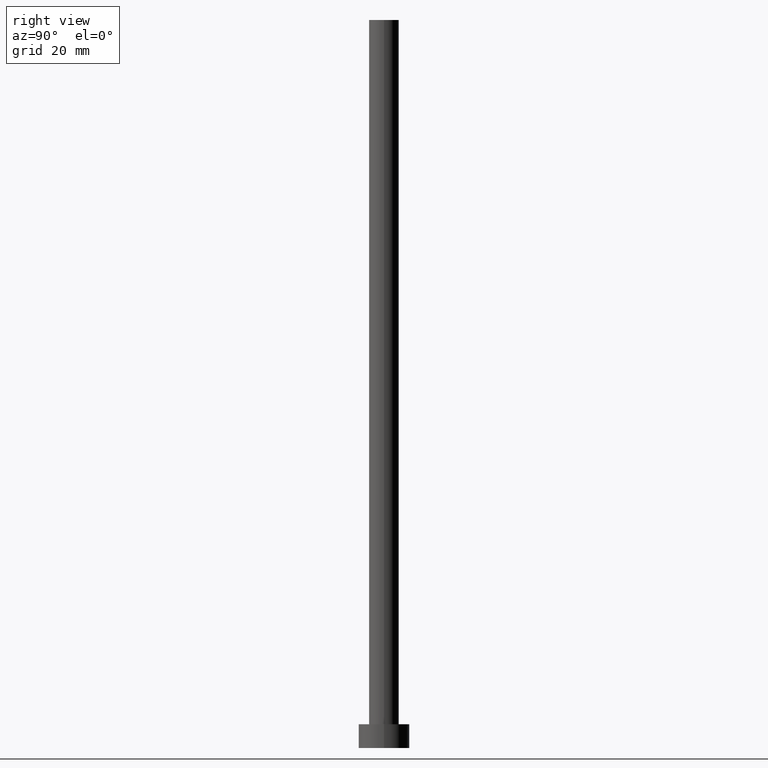
[diagram: clean part render]
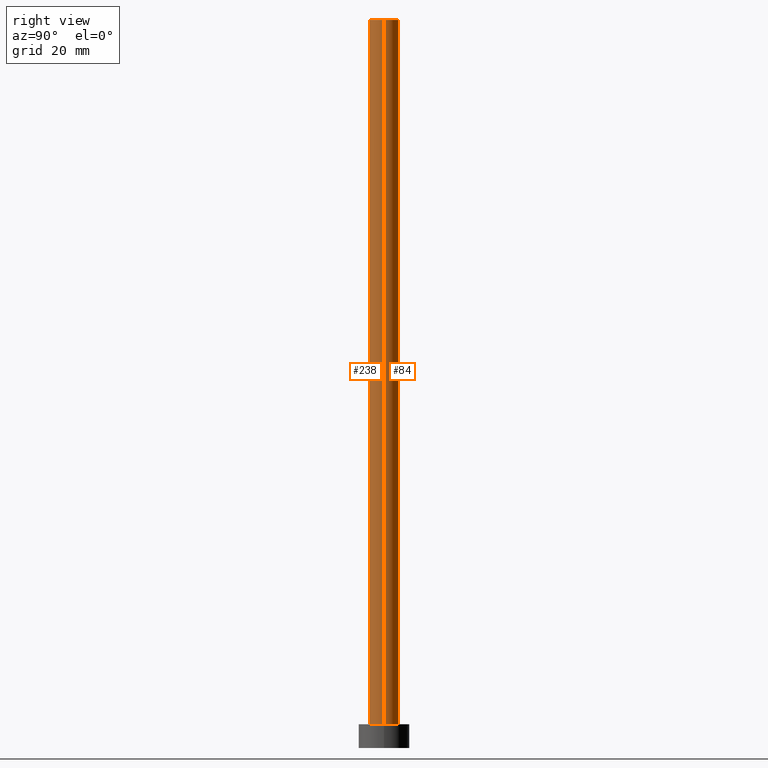
[diagram: same view with one multi-face feature highlighted, each face labeled with its STEP entity id]
A machine part, right view. The highlighted faces form ONE feature: a constant-radius fillet chain: 2 tangent blend faces with common blend radius 4.1 mm. The faces share edges in the B-rep.
Their STEP definitions:
[1] entity #238 (Cylinder):
#13 = DIRECTION ( 'NONE',  ( 0.000000000000000000, 0.000000000000000000, 1.000000000000000000 ) ) ;
#25 = VERTEX_POINT ( 'NONE', #225 ) ;
#26 = ORIENTED_EDGE ( 'NONE', *, *, #144, .F. ) ;
#27 = AXIS2_PLACEMENT_3D ( 'NONE', #235, #13, #92 ) ;
#29 = CARTESIAN_POINT ( 'NONE',  ( 0.000000000000000000, 0.000000000000000000, 6.500000000000000000 ) ) ;
#35 = CYLINDRICAL_SURFACE ( 'NONE', #237, 4.099999999999999645 ) ;
#36 = VECTOR ( 'NONE', #131, 1000.000000000000000 ) ;
#39 = EDGE_CURVE ( 'NONE', #247, #198, #202, .T. ) ;
#47 = ORIENTED_EDGE ( 'NONE', *, *, #77, .T. ) ;
#58 = CARTESIAN_POINT ( 'NONE',  ( -4.099999999999999645, 0.000000000000000000, 6.500000000000000000 ) ) ;
#73 = DIRECTION ( 'NONE',  ( 0.000000000000000000, 0.000000000000000000, 1.000000000000000000 ) ) ;
#77 = EDGE_CURVE ( 'NONE', #168, #198, #231, .T. ) ;
#79 = CARTESIAN_POINT ( 'NONE',  ( 4.099999999999999645, 5.021051876504147385E-16, 200.0000000000000000 ) ) ;
#82 = CIRCLE ( 'NONE', #27, 4.099999999999999645 ) ;
#92 = DIRECTION ( 'NONE',  ( 1.000000000000000000, 0.000000000000000000, 0.000000000000000000 ) ) ;
#105 = ORIENTED_EDGE ( 'NONE', *, *, #140, .T. ) ;
#107 = EDGE_LOOP ( 'NONE', ( #227, #26, #105, #47 ) ) ;
#112 = VECTOR ( 'NONE', #229, 1000.000000000000000 ) ;
#113 = DIRECTION ( 'NONE',  ( 1.000000000000000000, 0.000000000000000000, 0.000000000000000000 ) ) ;
#119 = DIRECTION ( 'NONE',  ( -0.000000000000000000, -0.000000000000000000, -1.000000000000000000 ) ) ;
#128 = CARTESIAN_POINT ( 'NONE',  ( 4.099999999999999645, 5.021051876504147385E-16, 200.0000000000000000 ) ) ;
#131 = DIRECTION ( 'NONE',  ( -0.000000000000000000, -0.000000000000000000, -1.000000000000000000 ) ) ;
#137 = DIRECTION ( 'NONE',  ( -1.000000000000000000, 0.000000000000000000, 0.000000000000000000 ) ) ;
#140 = EDGE_CURVE ( 'NONE', #25, #168, #252, .T. ) ;
#144 = EDGE_CURVE ( 'NONE', #25, #247, #82, .T. ) ;
#150 = CARTESIAN_POINT ( 'NONE',  ( 0.000000000000000000, 0.000000000000000000, 200.0000000000000000 ) ) ;
#152 = AXIS2_PLACEMENT_3D ( 'NONE', #29, #73, #113 ) ;
#168 = VERTEX_POINT ( 'NONE', #58 ) ;
#174 = CARTESIAN_POINT ( 'NONE',  ( 4.099999999999999645, 5.021051876504147385E-16, 6.500000000000000000 ) ) ;
#190 = CARTESIAN_POINT ( 'NONE',  ( -4.099999999999999645, 0.000000000000000000, 200.0000000000000000 ) ) ;
#198 = VERTEX_POINT ( 'NONE', #174 ) ;
#202 = LINE ( 'NONE', #128, #36 ) ;
#209 = FACE_OUTER_BOUND ( 'NONE', #107, .T. ) ;
#225 = CARTESIAN_POINT ( 'NONE',  ( -4.099999999999999645, 0.000000000000000000, 200.0000000000000000 ) ) ;
#227 = ORIENTED_EDGE ( 'NONE', *, *, #39, .F. ) ;
#229 = DIRECTION ( 'NONE',  ( -0.000000000000000000, -0.000000000000000000, -1.000000000000000000 ) ) ;
#231 = CIRCLE ( 'NONE', #152, 4.099999999999999645 ) ;
#235 = CARTESIAN_POINT ( 'NONE',  ( 0.000000000000000000, 0.000000000000000000, 200.0000000000000000 ) ) ;
#237 = AXIS2_PLACEMENT_3D ( 'NONE', #150, #119, #137 ) ;
#238 = ADVANCED_FACE ( 'NONE', ( #209 ), #35, .T. ) ;
#247 = VERTEX_POINT ( 'NONE', #79 ) ;
#252 = LINE ( 'NONE', #190, #112 ) ;
[2] entity #84 (Cylinder):
#11 = ORIENTED_EDGE ( 'NONE', *, *, #140, .F. ) ;
#19 = EDGE_CURVE ( 'NONE', #198, #168, #226, .T. ) ;
#25 = VERTEX_POINT ( 'NONE', #225 ) ;
#30 = CYLINDRICAL_SURFACE ( 'NONE', #74, 4.099999999999999645 ) ;
#36 = VECTOR ( 'NONE', #131, 1000.000000000000000 ) ;
#39 = EDGE_CURVE ( 'NONE', #247, #198, #202, .T. ) ;
#51 = CARTESIAN_POINT ( 'NONE',  ( 0.000000000000000000, 0.000000000000000000, 6.500000000000000000 ) ) ;
#58 = CARTESIAN_POINT ( 'NONE',  ( -4.099999999999999645, 0.000000000000000000, 6.500000000000000000 ) ) ;
#63 = EDGE_CURVE ( 'NONE', #247, #25, #211, .T. ) ;
#70 = DIRECTION ( 'NONE',  ( 0.000000000000000000, 0.000000000000000000, 1.000000000000000000 ) ) ;
#74 = AXIS2_PLACEMENT_3D ( 'NONE', #154, #251, #135 ) ;
#79 = CARTESIAN_POINT ( 'NONE',  ( 4.099999999999999645, 5.021051876504147385E-16, 200.0000000000000000 ) ) ;
#84 = ADVANCED_FACE ( 'NONE', ( #187 ), #30, .T. ) ;
#89 = ORIENTED_EDGE ( 'NONE', *, *, #39, .T. ) ;
#110 = EDGE_LOOP ( 'NONE', ( #160, #89, #165, #11 ) ) ;
#112 = VECTOR ( 'NONE', #229, 1000.000000000000000 ) ;
#128 = CARTESIAN_POINT ( 'NONE',  ( 4.099999999999999645, 5.021051876504147385E-16, 200.0000000000000000 ) ) ;
#131 = DIRECTION ( 'NONE',  ( -0.000000000000000000, -0.000000000000000000, -1.000000000000000000 ) ) ;
#135 = DIRECTION ( 'NONE',  ( -1.000000000000000000, 0.000000000000000000, 0.000000000000000000 ) ) ;
#140 = EDGE_CURVE ( 'NONE', #25, #168, #252, .T. ) ;
#148 = DIRECTION ( 'NONE',  ( 1.000000000000000000, 0.000000000000000000, 0.000000000000000000 ) ) ;
#154 = CARTESIAN_POINT ( 'NONE',  ( 0.000000000000000000, 0.000000000000000000, 200.0000000000000000 ) ) ;
#160 = ORIENTED_EDGE ( 'NONE', *, *, #63, .F. ) ;
#165 = ORIENTED_EDGE ( 'NONE', *, *, #19, .T. ) ;
#168 = VERTEX_POINT ( 'NONE', #58 ) ;
#174 = CARTESIAN_POINT ( 'NONE',  ( 4.099999999999999645, 5.021051876504147385E-16, 6.500000000000000000 ) ) ;
#182 = CARTESIAN_POINT ( 'NONE',  ( 0.000000000000000000, 0.000000000000000000, 200.0000000000000000 ) ) ;
#183 = DIRECTION ( 'NONE',  ( 0.000000000000000000, 0.000000000000000000, 1.000000000000000000 ) ) ;
#187 = FACE_OUTER_BOUND ( 'NONE', #110, .T. ) ;
#190 = CARTESIAN_POINT ( 'NONE',  ( -4.099999999999999645, 0.000000000000000000, 200.0000000000000000 ) ) ;
#196 = AXIS2_PLACEMENT_3D ( 'NONE', #182, #70, #148 ) ;
#198 = VERTEX_POINT ( 'NONE', #174 ) ;
#202 = LINE ( 'NONE', #128, #36 ) ;
#211 = CIRCLE ( 'NONE', #196, 4.099999999999999645 ) ;
#225 = CARTESIAN_POINT ( 'NONE',  ( -4.099999999999999645, 0.000000000000000000, 200.0000000000000000 ) ) ;
#226 = CIRCLE ( 'NONE', #245, 4.099999999999999645 ) ;
#229 = DIRECTION ( 'NONE',  ( -0.000000000000000000, -0.000000000000000000, -1.000000000000000000 ) ) ;
#245 = AXIS2_PLACEMENT_3D ( 'NONE', #51, #183, #249 ) ;
#247 = VERTEX_POINT ( 'NONE', #79 ) ;
#249 = DIRECTION ( 'NONE',  ( 1.000000000000000000, 0.000000000000000000, 0.000000000000000000 ) ) ;
#251 = DIRECTION ( 'NONE',  ( -0.000000000000000000, -0.000000000000000000, -1.000000000000000000 ) ) ;
#252 = LINE ( 'NONE', #190, #112 ) ;